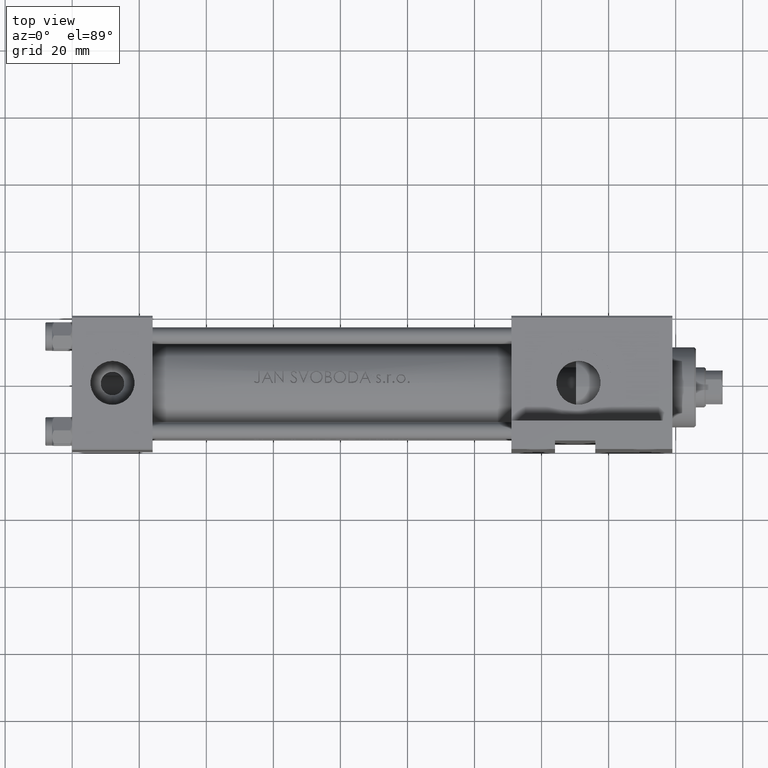
[diagram: clean part render]
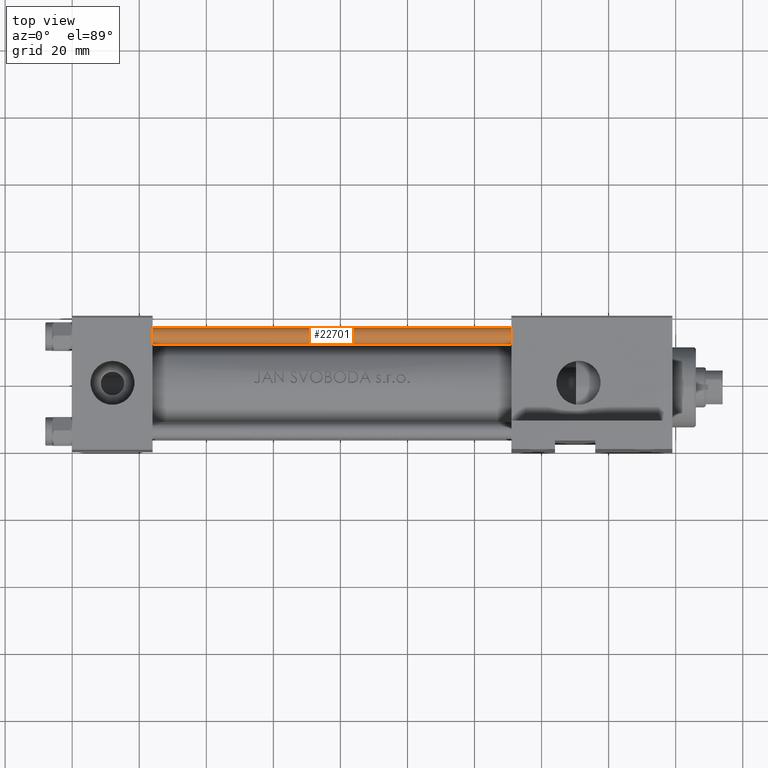
[diagram: same view with one face highlighted and labeled with its STEP entity id]
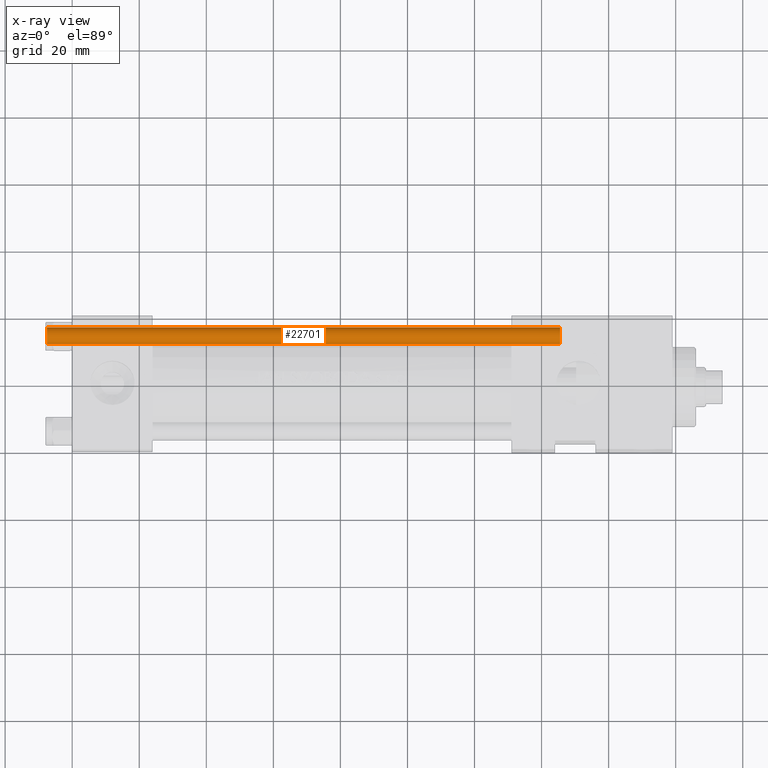
[diagram: x-ray of the same camera — body ghosted, the highlighted face saturated]
A machine part, top view. The second image highlights one B-rep face of the part: STEP entity #22701.
The next image is the same camera in x-ray: the body ghosted, the highlighted face saturated — about 0% of this face is hidden behind the body in this view.
In plain terms, the highlighted cylindrical surface (edge-blend (fillet) strip) has radius 2.5 mm, axis along (1, -0, 0).
Its self-contained STEP definition (entity closure, byte-faithful):
#727 = ORIENTED_EDGE ( 'NONE', *, *, #31574, .T. ) ;
#1029 = CARTESIAN_POINT ( 'NONE',  ( 0.000000000000000000, 0.000000000000000000, 154.0000000000000000 ) ) ;
#2387 = LINE ( 'NONE', #20220, #13804 ) ;
#2492 = CARTESIAN_POINT ( 'NONE',  ( -2.500000000000000000, 0.000000000000000000, 0.5000000000000281997 ) ) ;
#3204 = DIRECTION ( 'NONE',  ( 1.000000000000000000, 0.000000000000000000, 0.000000000000000000 ) ) ;
#6114 = CIRCLE ( 'NONE', #14585, 2.500000000000000000 ) ;
#9461 = CARTESIAN_POINT ( 'NONE',  ( 2.500000000000000000, 3.061616997868383141E-16, 154.0000000000000000 ) ) ;
#12412 = CARTESIAN_POINT ( 'NONE',  ( -2.500000000000000000, 0.000000000000000000, 153.5000000000000284 ) ) ;
#13637 = CARTESIAN_POINT ( 'NONE',  ( 0.000000000000000000, 0.000000000000000000, 0.5000000000000281997 ) ) ;
#13804 = VECTOR ( 'NONE', #20688, 1000.000000000000000 ) ;
#14450 = AXIS2_PLACEMENT_3D ( 'NONE', #1029, #15703, #45105 ) ;
#14585 = AXIS2_PLACEMENT_3D ( 'NONE', #17180, #28738, #3204 ) ;
#15470 = VERTEX_POINT ( 'NONE', #28140 ) ;
#15703 = DIRECTION ( 'NONE',  ( -0.000000000000000000, -0.000000000000000000, -1.000000000000000000 ) ) ;
#15858 = VERTEX_POINT ( 'NONE', #35242 ) ;
#17180 = CARTESIAN_POINT ( 'NONE',  ( 0.000000000000000000, 0.000000000000000000, 153.5000000000000284 ) ) ;
#19321 = CYLINDRICAL_SURFACE ( 'NONE', #14450, 2.500000000000000000 ) ;
#20220 = CARTESIAN_POINT ( 'NONE',  ( -2.500000000000000000, 0.000000000000000000, 154.0000000000000000 ) ) ;
#20688 = DIRECTION ( 'NONE',  ( -0.000000000000000000, -0.000000000000000000, -1.000000000000000000 ) ) ;
#22007 = VERTEX_POINT ( 'NONE', #2492 ) ;
#22701 = ADVANCED_FACE ( 'NONE', ( #22928 ), #19321, .T. ) ;
#22928 = FACE_OUTER_BOUND ( 'NONE', #37316, .T. ) ;
#25566 = EDGE_CURVE ( 'NONE', #15858, #32979, #6114, .T. ) ;
#26129 = VECTOR ( 'NONE', #35470, 1000.000000000000000 ) ;
#26952 = ORIENTED_EDGE ( 'NONE', *, *, #25566, .T. ) ;
#27512 = LINE ( 'NONE', #9461, #26129 ) ;
#28140 = CARTESIAN_POINT ( 'NONE',  ( 2.500000000000000000, 3.061616997868383141E-16, 0.5000000000000281997 ) ) ;
#28394 = CIRCLE ( 'NONE', #43817, 2.500000000000000000 ) ;
#28738 = DIRECTION ( 'NONE',  ( 0.000000000000000000, 0.000000000000000000, -1.000000000000000000 ) ) ;
#30778 = ORIENTED_EDGE ( 'NONE', *, *, #31069, .T. ) ;
#31069 = EDGE_CURVE ( 'NONE', #22007, #15470, #28394, .T. ) ;
#31574 = EDGE_CURVE ( 'NONE', #32979, #22007, #2387, .T. ) ;
#32979 = VERTEX_POINT ( 'NONE', #12412 ) ;
#34051 = ORIENTED_EDGE ( 'NONE', *, *, #36741, .F. ) ;
#35242 = CARTESIAN_POINT ( 'NONE',  ( 2.500000000000000000, 3.061616997868383141E-16, 153.5000000000000284 ) ) ;
#35470 = DIRECTION ( 'NONE',  ( -0.000000000000000000, -0.000000000000000000, -1.000000000000000000 ) ) ;
#36741 = EDGE_CURVE ( 'NONE', #15858, #15470, #27512, .T. ) ;
#37316 = EDGE_LOOP ( 'NONE', ( #34051, #26952, #727, #30778 ) ) ;
#38476 = DIRECTION ( 'NONE',  ( 1.000000000000000000, 0.000000000000000000, 0.000000000000000000 ) ) ;
#43817 = AXIS2_PLACEMENT_3D ( 'NONE', #13637, #46174, #38476 ) ;
#45105 = DIRECTION ( 'NONE',  ( -1.000000000000000000, 0.000000000000000000, 0.000000000000000000 ) ) ;
#46174 = DIRECTION ( 'NONE',  ( -0.000000000000000000, -0.000000000000000000, 1.000000000000000000 ) ) ;